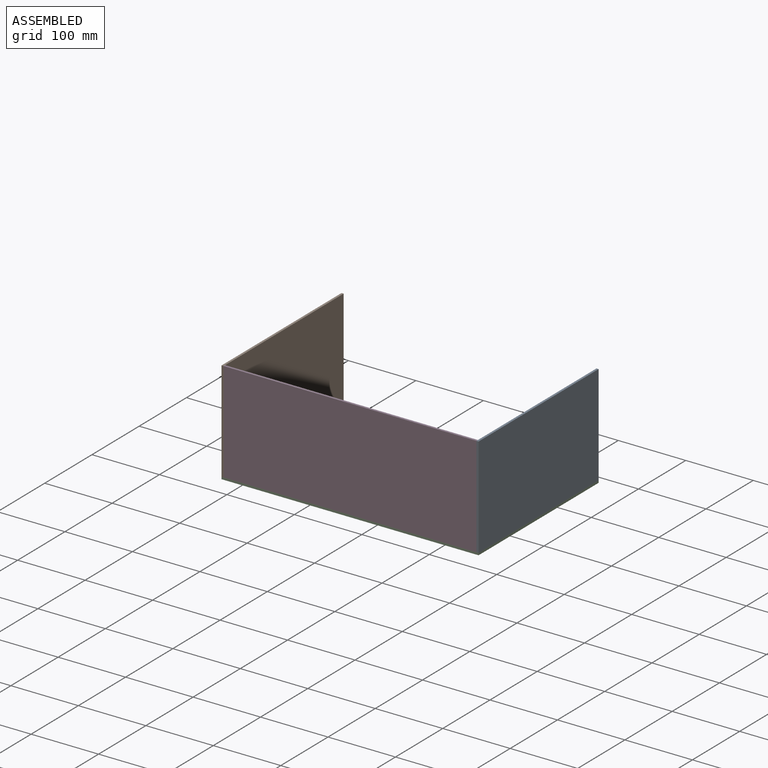
[diagram: assembled view]
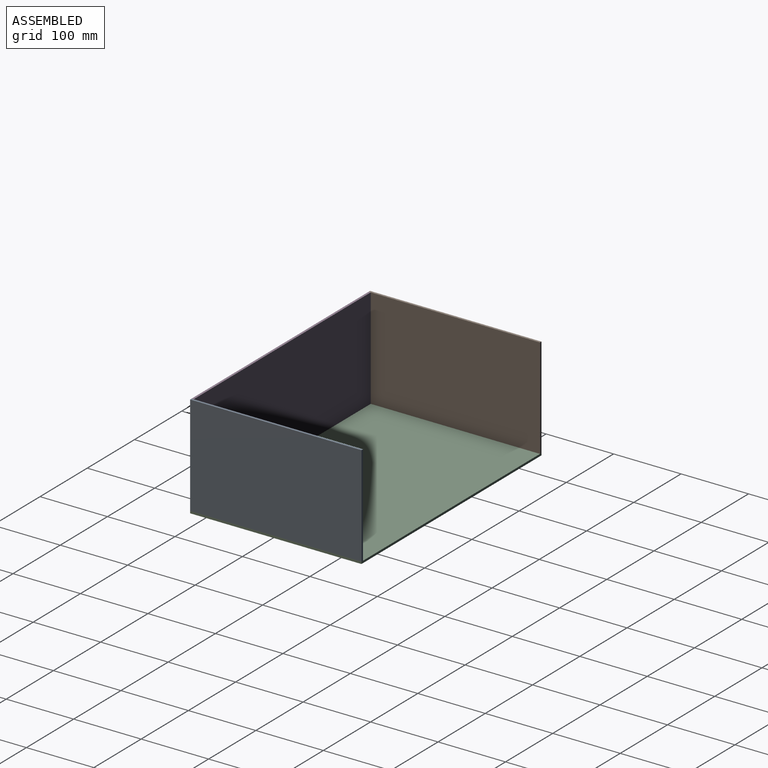
[diagram: assembled view, second angle]
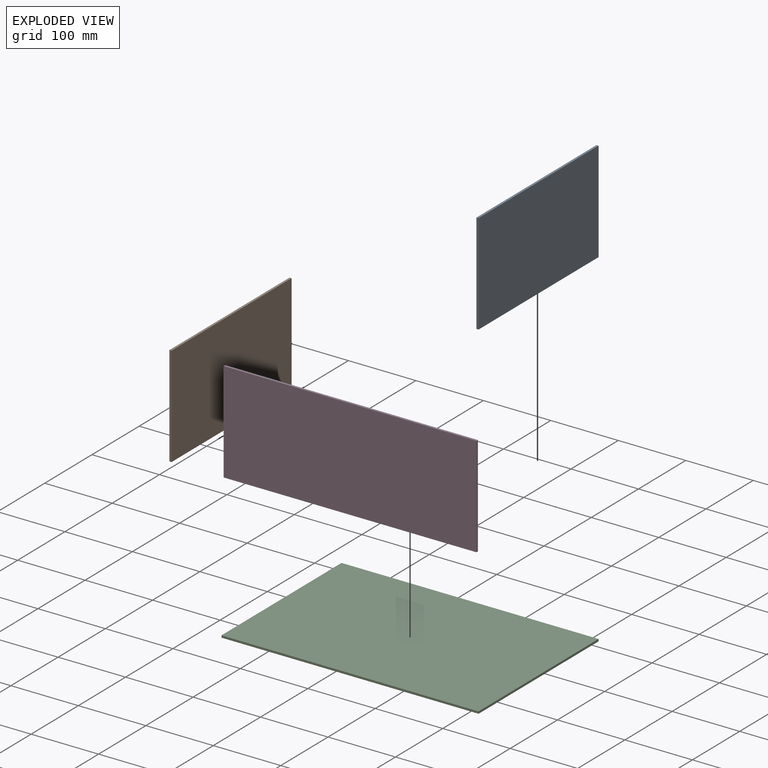
[diagram: exploded view]
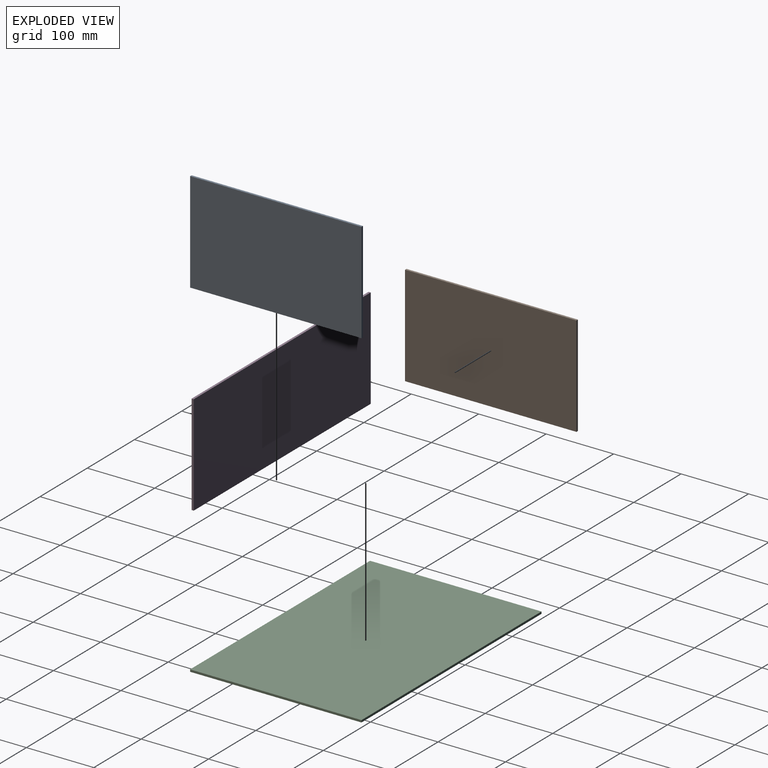
[diagram: exploded view, second angle]
ASSEMBLY  parts=4 mates=3
PART A: 6 faces, bbox 3.2x254x149.2 mm
  f0: plane 254x3.18mm, normal (0,0,1), area 806.5mm2, adj f1,f3,f4,f5
  f1: plane 149.23x3.18mm, normal (0,-1,0), area 473.8mm2, adj f0,f2,f4,f5
  f2: plane 254x3.18mm, normal (0,0,-1), area 806.5mm2, adj f1,f3,f4,f5
  f3: plane 149.23x3.18mm, normal (0,1,0), area 473.8mm2, adj f0,f2,f4,f5
  f4: plane 254x149.23mm, normal (1,0,0), area 37903.1mm2, adj f0,f1,f2,f3
  f5: plane 254x149.23mm, normal (-1,0,0), area 37903.1mm2, adj f0,f1,f2,f3
PART B: same geometry as A
PART C: 6 faces, bbox 381x254x3.2 mm
  f0: plane 381x3.18mm, normal (0,1,0), area 1209.7mm2, adj f1,f3,f4,f5
  f1: plane 254x3.18mm, normal (-1,0,0), area 806.5mm2, adj f0,f2,f4,f5
  f2: plane 381x3.18mm, normal (0,-1,0), area 1209.7mm2, adj f1,f3,f4,f5
  f3: plane 254x3.18mm, normal (1,0,0), area 806.5mm2, adj f0,f2,f4,f5
  f4: plane 381x254mm, normal (0,0,1), area 96774mm2, adj f0,f1,f2,f3
  f5: plane 381x254mm, normal (0,0,-1), area 96774mm2, adj f0,f1,f2,f3
PART D: 6 faces, bbox 374.7x3.2x149.2 mm
  f0: plane 374.65x3.18mm, normal (0,0,1), area 1189.5mm2, adj f1,f3,f4,f5
  f1: plane 149.23x3.18mm, normal (-1,0,0), area 473.8mm2, adj f0,f2,f4,f5
  f2: plane 374.65x3.18mm, normal (0,0,-1), area 1189.5mm2, adj f1,f3,f4,f5
  f3: plane 149.23x3.18mm, normal (1,0,0), area 473.8mm2, adj f0,f2,f4,f5
  f4: plane 374.65x149.23mm, normal (0,-1,0), area 55907.1mm2, adj f0,f1,f2,f3
  f5: plane 374.65x149.23mm, normal (0,1,0), area 55907.1mm2, adj f0,f1,f2,f3
PLACE A t=(217.21,73.83,-101.87)mm
PLACE B t=(-160.62,73.83,-101.87)mm
PLACE C t=(29.88,73.83,-179.66)mm
PLACE D t=(29.88,-50,-101.87)mm
MATE fastened D.f2 <-> C.f4  axis (0,0,-1) through (29.88,-53.17,-176.48)mm
MATE fastened B.f2 <-> C.f4  axis (0,0,-1) through (-160.62,73.83,-176.48)mm
MATE fastened C.f4 <-> A.f2  axis (0,0,1) through (220.38,73.83,-176.48)mm
